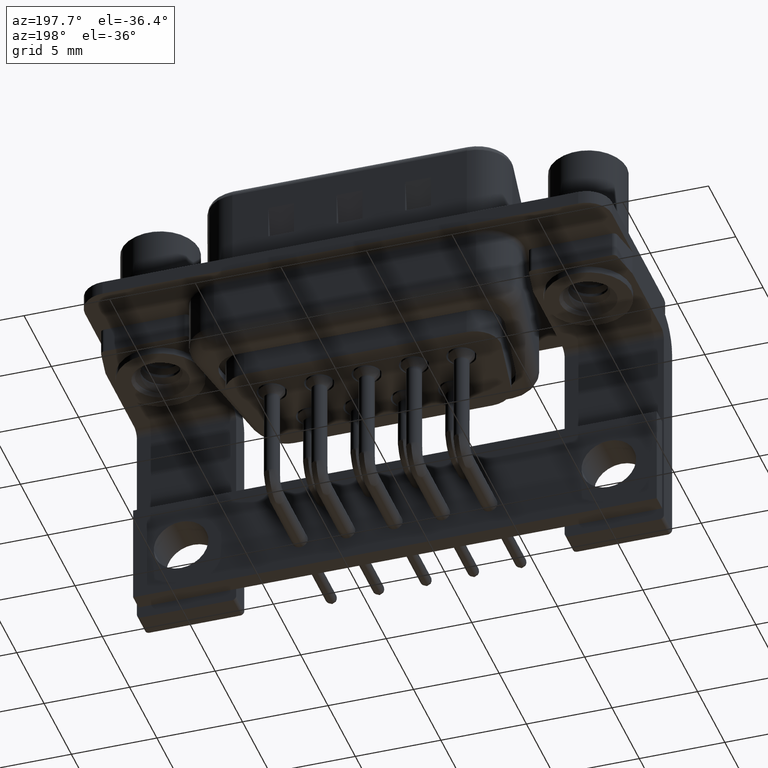
[diagram: clean part render]
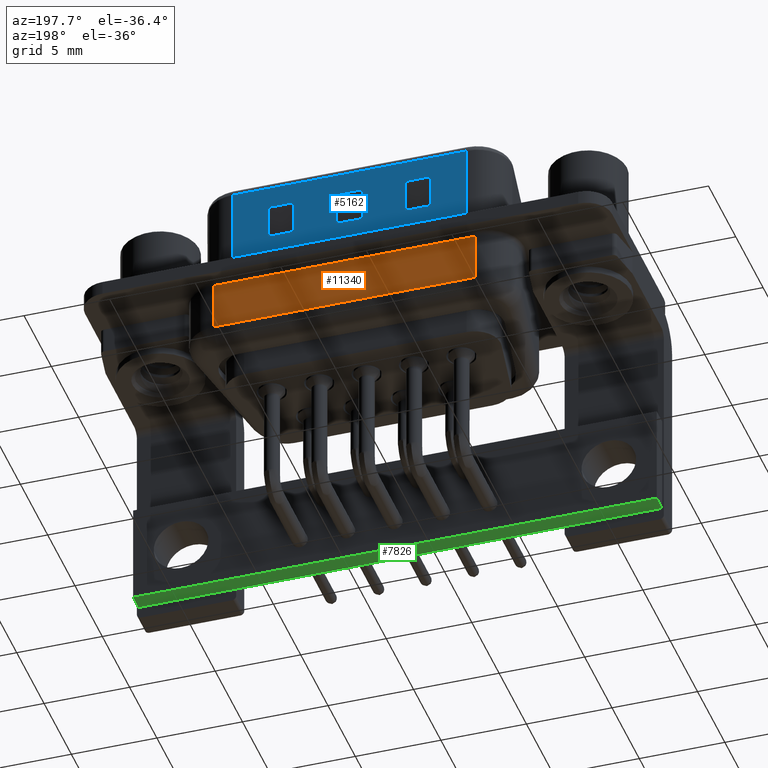
[diagram: same view with three faces highlighted in distinct colors, each labeled with its STEP entity id]
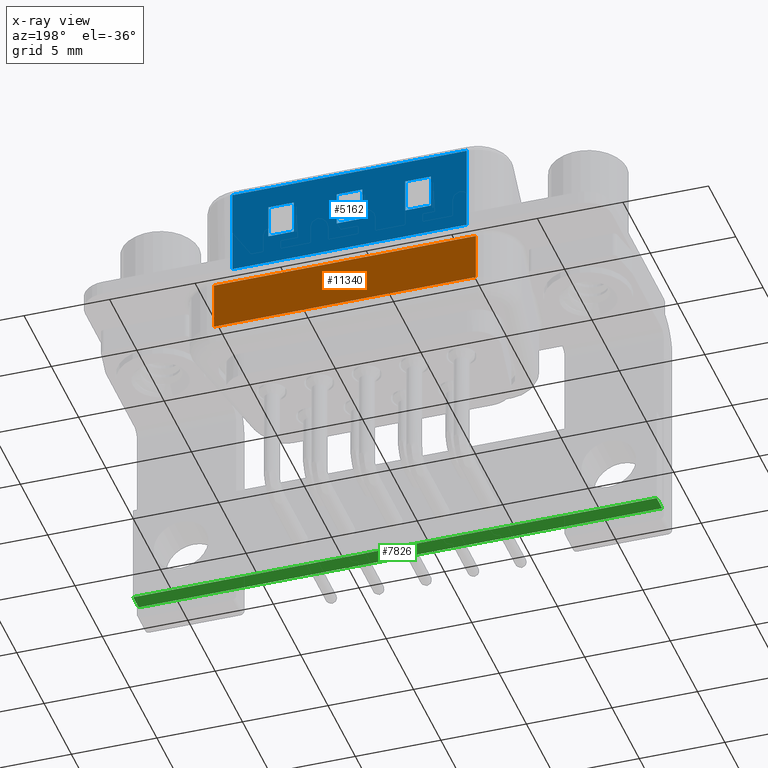
[diagram: x-ray of the same camera — body ghosted, the three highlighted faces saturated]
A machine part, auxiliary view with three faces highlighted in distinct colors.
The next image is the same camera in x-ray (body ghosted, the three faces saturated) — at least one of them is partly hidden behind the body in this view.
Their STEP definitions:

[orange] entity #11340 — the highlighted planar face has unit normal (0, -1, 0).
#416 = ORIENTED_EDGE ( 'NONE', *, *, #17095, .T. ) ;
#952 = VECTOR ( 'NONE', #10922, 1000.000000000000000 ) ;
#1479 = LINE ( 'NONE', #7462, #952 ) ;
#2146 = CARTESIAN_POINT ( 'NONE',  ( 4.850000000000006800, 5.399999999999998600, -0.6500000000000000200 ) ) ;
#2227 = ORIENTED_EDGE ( 'NONE', *, *, #13688, .T. ) ;
#2671 = VECTOR ( 'NONE', #21669, 1000.000000000000000 ) ;
#5001 = CARTESIAN_POINT ( 'NONE',  ( 20.15000000000000200, 5.399999999999995900, -4.500000000000000000 ) ) ;
#5093 = EDGE_CURVE ( 'NONE', #18664, #13876, #8900, .T. ) ;
#5285 = CARTESIAN_POINT ( 'NONE',  ( 20.15000000000000200, 5.399999999999995900, -3.499999999999999600 ) ) ;
#5634 = ORIENTED_EDGE ( 'NONE', *, *, #5093, .T. ) ;
#5920 = CARTESIAN_POINT ( 'NONE',  ( 20.15000000000000200, 5.399999999999995900, -4.500000000000000000 ) ) ;
#7462 = CARTESIAN_POINT ( 'NONE',  ( 4.850000000000006800, 5.399999999999998600, -4.500000000000000000 ) ) ;
#8352 = ORIENTED_EDGE ( 'NONE', *, *, #11010, .F. ) ;
#8428 = CARTESIAN_POINT ( 'NONE',  ( 20.15000000000000200, 5.399999999999995900, -3.499999999999999600 ) ) ;
#8455 = PLANE ( 'NONE',  #17188 ) ;
#8900 = LINE ( 'NONE', #8428, #13505 ) ;
#9809 = VERTEX_POINT ( 'NONE', #2146 ) ;
#10197 = DIRECTION ( 'NONE',  ( 0.0000000000000000000, 0.0000000000000000000, -1.000000000000000000 ) ) ;
#10922 = DIRECTION ( 'NONE',  ( -0.0000000000000000000, -0.0000000000000000000, 1.000000000000000000 ) ) ;
#11010 = EDGE_CURVE ( 'NONE', #18664, #17080, #21798, .T. ) ;
#11340 = ADVANCED_FACE ( 'NONE', ( #21516 ), #8455, .F. ) ;
#13009 = CARTESIAN_POINT ( 'NONE',  ( 20.15000000000000200, 5.399999999999995900, -0.6500000000000000200 ) ) ;
#13505 = VECTOR ( 'NONE', #22330, 1000.000000000000000 ) ;
#13688 = EDGE_CURVE ( 'NONE', #9809, #17080, #16418, .T. ) ;
#13876 = VERTEX_POINT ( 'NONE', #16981 ) ;
#16261 = DIRECTION ( 'NONE',  ( -0.0000000000000000000, -0.0000000000000000000, 1.000000000000000000 ) ) ;
#16418 = LINE ( 'NONE', #13009, #2671 ) ;
#16981 = CARTESIAN_POINT ( 'NONE',  ( 4.850000000000006800, 5.399999999999998600, -3.499999999999999600 ) ) ;
#17080 = VERTEX_POINT ( 'NONE', #17788 ) ;
#17095 = EDGE_CURVE ( 'NONE', #13876, #9809, #1479, .T. ) ;
#17188 = AXIS2_PLACEMENT_3D ( 'NONE', #5001, #20581, #10197 ) ;
#17682 = VECTOR ( 'NONE', #16261, 1000.000000000000000 ) ;
#17788 = CARTESIAN_POINT ( 'NONE',  ( 20.15000000000000200, 5.399999999999995900, -0.6500000000000000200 ) ) ;
#18664 = VERTEX_POINT ( 'NONE', #5285 ) ;
#19430 = EDGE_LOOP ( 'NONE', ( #8352, #5634, #416, #2227 ) ) ;
#20581 = DIRECTION ( 'NONE',  ( 0.0000000000000000000, -1.000000000000000000, -0.0000000000000000000 ) ) ;
#21516 = FACE_OUTER_BOUND ( 'NONE', #19430, .T. ) ;
#21669 = DIRECTION ( 'NONE',  ( 1.000000000000000000, 0.0000000000000000000, 0.0000000000000000000 ) ) ;
#21798 = LINE ( 'NONE', #5920, #17682 ) ;
#22330 = DIRECTION ( 'NONE',  ( -1.000000000000000000, -0.0000000000000000000, -0.0000000000000000000 ) ) ;

[blue] entity #5162 — the highlighted planar face has unit normal (0, -1, 0).
#273 = EDGE_CURVE ( 'NONE', #20242, #7350, #14276, .T. ) ;
#1150 = ORIENTED_EDGE ( 'NONE', *, *, #6759, .F. ) ;
#1297 = CARTESIAN_POINT ( 'NONE',  ( 15.75000000000000700, 4.549999999999998900, 2.704948974278317000 ) ) ;
#1377 = LINE ( 'NONE', #1297, #11092 ) ;
#1408 = ORIENTED_EDGE ( 'NONE', *, *, #12482, .F. ) ;
#1553 = LINE ( 'NONE', #8089, #11809 ) ;
#1670 = VECTOR ( 'NONE', #21272, 1000.000000000000000 ) ;
#2082 = CARTESIAN_POINT ( 'NONE',  ( 15.75000000000000700, 4.549999999999998900, 4.704948974278316600 ) ) ;
#2485 = DIRECTION ( 'NONE',  ( -0.0000000000000000000, -0.0000000000000000000, 1.000000000000000000 ) ) ;
#2594 = DIRECTION ( 'NONE',  ( 0.0000000000000000000, 0.0000000000000000000, -1.000000000000000000 ) ) ;
#2715 = FACE_BOUND ( 'NONE', #16848, .T. ) ;
#2780 = EDGE_LOOP ( 'NONE', ( #4655, #4091, #16386, #21004 ) ) ;
#3380 = CARTESIAN_POINT ( 'NONE',  ( 15.75000000000000700, 4.549999999999998900, 2.704948974278317000 ) ) ;
#3559 = ORIENTED_EDGE ( 'NONE', *, *, #9451, .T. ) ;
#3616 = CARTESIAN_POINT ( 'NONE',  ( 13.25000000000000900, 4.549999999999998900, 4.704948974278316600 ) ) ;
#3790 = LINE ( 'NONE', #11424, #7840 ) ;
#3933 = VECTOR ( 'NONE', #21943, 1000.000000000000000 ) ;
#4091 = ORIENTED_EDGE ( 'NONE', *, *, #6440, .F. ) ;
#4217 = DIRECTION ( 'NONE',  ( 1.000000000000000000, 0.0000000000000000000, 0.0000000000000000000 ) ) ;
#4338 = CARTESIAN_POINT ( 'NONE',  ( 19.34999999999999800, 4.550000000000001600, 6.520000000000000500 ) ) ;
#4404 = EDGE_CURVE ( 'NONE', #14673, #19826, #7038, .T. ) ;
#4519 = DIRECTION ( 'NONE',  ( 1.000000000000000000, 0.0000000000000000000, 0.0000000000000000000 ) ) ;
#4570 = ORIENTED_EDGE ( 'NONE', *, *, #273, .F. ) ;
#4655 = ORIENTED_EDGE ( 'NONE', *, *, #11922, .F. ) ;
#5083 = CARTESIAN_POINT ( 'NONE',  ( 9.250000000000008900, 4.549999999999998900, 4.704948974278316600 ) ) ;
#5162 = ADVANCED_FACE ( 'NONE', ( #2715, #11334, #7284, #15920 ), #17346, .F. ) ;
#5210 = DIRECTION ( 'NONE',  ( 0.0000000000000000000, -1.000000000000000000, 0.0000000000000000000 ) ) ;
#5333 = CARTESIAN_POINT ( 'NONE',  ( 11.75000000000000700, 4.549999999999998900, 2.704948974278317000 ) ) ;
#5340 = VECTOR ( 'NONE', #8789, 1000.000000000000000 ) ;
#5914 = VERTEX_POINT ( 'NONE', #2082 ) ;
#6111 = EDGE_CURVE ( 'NONE', #11338, #15356, #10259, .T. ) ;
#6272 = ORIENTED_EDGE ( 'NONE', *, *, #12536, .F. ) ;
#6440 = EDGE_CURVE ( 'NONE', #21336, #16873, #13486, .T. ) ;
#6759 = EDGE_CURVE ( 'NONE', #14450, #11338, #20803, .T. ) ;
#6988 = DIRECTION ( 'NONE',  ( 0.0000000000000000000, -0.0000000000000000000, -1.000000000000000000 ) ) ;
#6997 = EDGE_CURVE ( 'NONE', #8365, #21451, #11843, .T. ) ;
#7038 = LINE ( 'NONE', #4338, #15686 ) ;
#7207 = CARTESIAN_POINT ( 'NONE',  ( 7.750000000000007100, 4.549999999999998900, 2.704948974278317000 ) ) ;
#7252 = VECTOR ( 'NONE', #2594, 1000.000000000000000 ) ;
#7284 = FACE_BOUND ( 'NONE', #20623, .T. ) ;
#7349 = EDGE_CURVE ( 'NONE', #10848, #19472, #14537, .T. ) ;
#7350 = VERTEX_POINT ( 'NONE', #17405 ) ;
#7535 = VECTOR ( 'NONE', #13818, 1000.000000000000000 ) ;
#7548 = EDGE_CURVE ( 'NONE', #16839, #5914, #21043, .T. ) ;
#7604 = CARTESIAN_POINT ( 'NONE',  ( 5.650000000000014600, 4.549999999999998900, 6.520000000000000500 ) ) ;
#7697 = ORIENTED_EDGE ( 'NONE', *, *, #7349, .F. ) ;
#7703 = CARTESIAN_POINT ( 'NONE',  ( 17.25000000000000700, 4.549999999999998900, 4.704948974278316600 ) ) ;
#7816 = VECTOR ( 'NONE', #20316, 1000.000000000000000 ) ;
#7840 = VECTOR ( 'NONE', #16692, 1000.000000000000000 ) ;
#8089 = CARTESIAN_POINT ( 'NONE',  ( 5.650000000000014600, 4.549999999999998900, 6.020000000000001400 ) ) ;
#8303 = DIRECTION ( 'NONE',  ( -0.0000000000000000000, -0.0000000000000000000, -1.000000000000000000 ) ) ;
#8365 = VERTEX_POINT ( 'NONE', #5083 ) ;
#8789 = DIRECTION ( 'NONE',  ( -0.0000000000000000000, -0.0000000000000000000, 1.000000000000000000 ) ) ;
#9451 = EDGE_CURVE ( 'NONE', #20242, #14673, #1553, .T. ) ;
#9453 = DIRECTION ( 'NONE',  ( -1.000000000000000000, -0.0000000000000000000, -0.0000000000000000000 ) ) ;
#9805 = CARTESIAN_POINT ( 'NONE',  ( 5.650000000000014600, 4.549999999999998900, 0.8999999999999998000 ) ) ;
#9878 = CARTESIAN_POINT ( 'NONE',  ( 13.25000000000000900, 4.549999999999998900, 4.704948974278316600 ) ) ;
#9937 = CARTESIAN_POINT ( 'NONE',  ( 11.75000000000000700, 4.549999999999998900, 4.704948974278316600 ) ) ;
#10259 = LINE ( 'NONE', #19821, #19457 ) ;
#10848 = VERTEX_POINT ( 'NONE', #7207 ) ;
#11042 = CARTESIAN_POINT ( 'NONE',  ( 15.75000000000000700, 4.549999999999998900, 4.704948974278316600 ) ) ;
#11092 = VECTOR ( 'NONE', #20241, 1000.000000000000000 ) ;
#11294 = CARTESIAN_POINT ( 'NONE',  ( 19.34999999999999800, 4.550000000000001600, 0.8999999999999998000 ) ) ;
#11334 = FACE_BOUND ( 'NONE', #2780, .T. ) ;
#11338 = VERTEX_POINT ( 'NONE', #22280 ) ;
#11424 = CARTESIAN_POINT ( 'NONE',  ( 11.75000000000000700, 4.549999999999998900, 4.704948974278316600 ) ) ;
#11645 = EDGE_CURVE ( 'NONE', #16185, #14450, #21148, .T. ) ;
#11679 = CARTESIAN_POINT ( 'NONE',  ( 9.250000000000008900, 4.549999999999998900, 2.704948974278317000 ) ) ;
#11809 = VECTOR ( 'NONE', #16699, 1000.000000000000000 ) ;
#11843 = LINE ( 'NONE', #19787, #7252 ) ;
#11922 = EDGE_CURVE ( 'NONE', #16873, #16839, #1377, .T. ) ;
#12144 = ORIENTED_EDGE ( 'NONE', *, *, #6111, .F. ) ;
#12406 = LINE ( 'NONE', #15086, #7816 ) ;
#12482 = EDGE_CURVE ( 'NONE', #19472, #8365, #18087, .T. ) ;
#12536 = EDGE_CURVE ( 'NONE', #21451, #10848, #12406, .T. ) ;
#12706 = ORIENTED_EDGE ( 'NONE', *, *, #6997, .F. ) ;
#13078 = VECTOR ( 'NONE', #4217, 1000.000000000000000 ) ;
#13486 = LINE ( 'NONE', #7703, #22195 ) ;
#13494 = VECTOR ( 'NONE', #4519, 1000.000000000000000 ) ;
#13818 = DIRECTION ( 'NONE',  ( 0.0000000000000000000, 0.0000000000000000000, -1.000000000000000000 ) ) ;
#13937 = CARTESIAN_POINT ( 'NONE',  ( 7.750000000000007100, 4.549999999999998900, 4.704948974278316600 ) ) ;
#13994 = CARTESIAN_POINT ( 'NONE',  ( 5.650000000000014600, 4.549999999999998900, 6.020000000000001400 ) ) ;
#14276 = LINE ( 'NONE', #7604, #18317 ) ;
#14450 = VERTEX_POINT ( 'NONE', #9878 ) ;
#14537 = LINE ( 'NONE', #13937, #5340 ) ;
#14550 = CARTESIAN_POINT ( 'NONE',  ( 17.25000000000000700, 4.549999999999998900, 4.704948974278316600 ) ) ;
#14673 = VERTEX_POINT ( 'NONE', #20932 ) ;
#14781 = DIRECTION ( 'NONE',  ( -0.0000000000000000000, -0.0000000000000000000, -1.000000000000000000 ) ) ;
#15086 = CARTESIAN_POINT ( 'NONE',  ( 7.750000000000007100, 4.549999999999998900, 2.704948974278317000 ) ) ;
#15187 = EDGE_LOOP ( 'NONE', ( #4570, #3559, #18635, #21153 ) ) ;
#15356 = VERTEX_POINT ( 'NONE', #5333 ) ;
#15602 = CARTESIAN_POINT ( 'NONE',  ( 5.650000000000014600, 4.549999999999998900, 6.520000000000000500 ) ) ;
#15686 = VECTOR ( 'NONE', #8303, 1000.000000000000000 ) ;
#15865 = VECTOR ( 'NONE', #2485, 1000.000000000000000 ) ;
#15920 = FACE_OUTER_BOUND ( 'NONE', #15187, .T. ) ;
#16131 = EDGE_CURVE ( 'NONE', #19826, #7350, #16622, .T. ) ;
#16185 = VERTEX_POINT ( 'NONE', #9937 ) ;
#16200 = CARTESIAN_POINT ( 'NONE',  ( 15.75000000000000700, 4.549999999999998900, 4.704948974278316600 ) ) ;
#16281 = ORIENTED_EDGE ( 'NONE', *, *, #11645, .F. ) ;
#16312 = DIRECTION ( 'NONE',  ( 0.0000000000000000000, 0.0000000000000000000, -1.000000000000000000 ) ) ;
#16386 = ORIENTED_EDGE ( 'NONE', *, *, #17135, .F. ) ;
#16622 = LINE ( 'NONE', #9805, #3933 ) ;
#16692 = DIRECTION ( 'NONE',  ( -0.0000000000000000000, -0.0000000000000000000, 1.000000000000000000 ) ) ;
#16699 = DIRECTION ( 'NONE',  ( 1.000000000000000000, -0.0000000000000000000, -0.0000000000000000000 ) ) ;
#16839 = VERTEX_POINT ( 'NONE', #3380 ) ;
#16848 = EDGE_LOOP ( 'NONE', ( #6272, #12706, #1408, #7697 ) ) ;
#16873 = VERTEX_POINT ( 'NONE', #20785 ) ;
#17135 = EDGE_CURVE ( 'NONE', #5914, #21336, #17669, .T. ) ;
#17346 = PLANE ( 'NONE',  #20658 ) ;
#17405 = CARTESIAN_POINT ( 'NONE',  ( 5.650000000000014600, 4.549999999999998900, 0.8999999999999998000 ) ) ;
#17669 = LINE ( 'NONE', #16200, #13078 ) ;
#17842 = CARTESIAN_POINT ( 'NONE',  ( 7.750000000000007100, 4.549999999999998900, 4.704948974278316600 ) ) ;
#17960 = ORIENTED_EDGE ( 'NONE', *, *, #20620, .F. ) ;
#18087 = LINE ( 'NONE', #18329, #13494 ) ;
#18317 = VECTOR ( 'NONE', #14781, 1000.000000000000000 ) ;
#18329 = CARTESIAN_POINT ( 'NONE',  ( 7.750000000000007100, 4.549999999999998900, 4.704948974278316600 ) ) ;
#18635 = ORIENTED_EDGE ( 'NONE', *, *, #4404, .T. ) ;
#19457 = VECTOR ( 'NONE', #9453, 1000.000000000000000 ) ;
#19472 = VERTEX_POINT ( 'NONE', #17842 ) ;
#19499 = CARTESIAN_POINT ( 'NONE',  ( 11.75000000000000700, 4.549999999999998900, 4.704948974278316600 ) ) ;
#19787 = CARTESIAN_POINT ( 'NONE',  ( 9.250000000000008900, 4.549999999999998900, 4.704948974278316600 ) ) ;
#19821 = CARTESIAN_POINT ( 'NONE',  ( 11.75000000000000700, 4.549999999999998900, 2.704948974278317000 ) ) ;
#19826 = VERTEX_POINT ( 'NONE', #11294 ) ;
#20241 = DIRECTION ( 'NONE',  ( -1.000000000000000000, -0.0000000000000000000, -0.0000000000000000000 ) ) ;
#20242 = VERTEX_POINT ( 'NONE', #13994 ) ;
#20316 = DIRECTION ( 'NONE',  ( -1.000000000000000000, -0.0000000000000000000, -0.0000000000000000000 ) ) ;
#20620 = EDGE_CURVE ( 'NONE', #15356, #16185, #3790, .T. ) ;
#20623 = EDGE_LOOP ( 'NONE', ( #12144, #1150, #16281, #17960 ) ) ;
#20658 = AXIS2_PLACEMENT_3D ( 'NONE', #15602, #5210, #6988 ) ;
#20785 = CARTESIAN_POINT ( 'NONE',  ( 17.25000000000000700, 4.549999999999998900, 2.704948974278317000 ) ) ;
#20803 = LINE ( 'NONE', #3616, #7535 ) ;
#20932 = CARTESIAN_POINT ( 'NONE',  ( 19.34999999999999800, 4.550000000000001600, 6.020000000000001400 ) ) ;
#21004 = ORIENTED_EDGE ( 'NONE', *, *, #7548, .F. ) ;
#21043 = LINE ( 'NONE', #11042, #15865 ) ;
#21148 = LINE ( 'NONE', #19499, #1670 ) ;
#21153 = ORIENTED_EDGE ( 'NONE', *, *, #16131, .T. ) ;
#21272 = DIRECTION ( 'NONE',  ( 1.000000000000000000, 0.0000000000000000000, 0.0000000000000000000 ) ) ;
#21336 = VERTEX_POINT ( 'NONE', #14550 ) ;
#21451 = VERTEX_POINT ( 'NONE', #11679 ) ;
#21943 = DIRECTION ( 'NONE',  ( -1.000000000000000000, 0.0000000000000000000, 0.0000000000000000000 ) ) ;
#22195 = VECTOR ( 'NONE', #16312, 1000.000000000000000 ) ;
#22280 = CARTESIAN_POINT ( 'NONE',  ( 13.25000000000000900, 4.549999999999998900, 2.704948974278317000 ) ) ;

[green] entity #7826 — the highlighted planar face has unit normal (0, 0, 1).
#33 = VECTOR ( 'NONE', #13229, 1000.000000000000000 ) ;
#530 = VERTEX_POINT ( 'NONE', #8430 ) ;
#829 = ORIENTED_EDGE ( 'NONE', *, *, #6252, .F. ) ;
#1121 = VERTEX_POINT ( 'NONE', #5967 ) ;
#1128 = CARTESIAN_POINT ( 'NONE',  ( 27.80000000000000400, -3.750000000000000000, -14.07000000000000200 ) ) ;
#2906 = CARTESIAN_POINT ( 'NONE',  ( 27.80000000000000400, -3.750000000000000000, -14.07000000000000200 ) ) ;
#3124 = EDGE_CURVE ( 'NONE', #530, #18277, #21359, .T. ) ;
#5967 = CARTESIAN_POINT ( 'NONE',  ( -2.799999999999997200, -3.750000000000000000, -14.06999999999999900 ) ) ;
#6252 = EDGE_CURVE ( 'NONE', #21959, #1121, #8079, .T. ) ;
#7064 = LINE ( 'NONE', #1128, #19791 ) ;
#7147 = DIRECTION ( 'NONE',  ( 1.133806193448893400E-016, -0.0000000000000000000, 1.000000000000000000 ) ) ;
#7178 = VECTOR ( 'NONE', #8040, 1000.000000000000000 ) ;
#7792 = CARTESIAN_POINT ( 'NONE',  ( 27.80000000000000400, -3.750000000000000000, -14.07000000000000200 ) ) ;
#7826 = ADVANCED_FACE ( 'NONE', ( #20197 ), #14016, .F. ) ;
#8040 = DIRECTION ( 'NONE',  ( -0.0000000000000000000, -1.000000000000000000, -0.0000000000000000000 ) ) ;
#8079 = LINE ( 'NONE', #2906, #33 ) ;
#8430 = CARTESIAN_POINT ( 'NONE',  ( 27.80000000000000400, -4.750000000000000000, -14.07000000000000200 ) ) ;
#9586 = ORIENTED_EDGE ( 'NONE', *, *, #3124, .T. ) ;
#11446 = DIRECTION ( 'NONE',  ( -0.0000000000000000000, -1.000000000000000000, -0.0000000000000000000 ) ) ;
#11776 = LINE ( 'NONE', #14940, #7178 ) ;
#12133 = VECTOR ( 'NONE', #16104, 1000.000000000000000 ) ;
#12972 = EDGE_LOOP ( 'NONE', ( #9586, #14627, #829, #21838 ) ) ;
#13229 = DIRECTION ( 'NONE',  ( -1.000000000000000000, 0.0000000000000000000, 1.133806193448893400E-016 ) ) ;
#14016 = PLANE ( 'NONE',  #15153 ) ;
#14627 = ORIENTED_EDGE ( 'NONE', *, *, #15221, .F. ) ;
#14902 = CARTESIAN_POINT ( 'NONE',  ( 27.80000000000000400, -4.750000000000000000, -14.07000000000000200 ) ) ;
#14940 = CARTESIAN_POINT ( 'NONE',  ( -2.799999999999997200, -3.750000000000000000, -14.06999999999999900 ) ) ;
#15153 = AXIS2_PLACEMENT_3D ( 'NONE', #17484, #7147, #19233 ) ;
#15221 = EDGE_CURVE ( 'NONE', #1121, #18277, #11776, .T. ) ;
#16104 = DIRECTION ( 'NONE',  ( -1.000000000000000000, 0.0000000000000000000, 1.133806193448893400E-016 ) ) ;
#16236 = CARTESIAN_POINT ( 'NONE',  ( -2.799999999999997200, -4.750000000000000000, -14.06999999999999900 ) ) ;
#17484 = CARTESIAN_POINT ( 'NONE',  ( 27.80000000000000400, -3.750000000000000000, -14.07000000000000200 ) ) ;
#18277 = VERTEX_POINT ( 'NONE', #16236 ) ;
#19233 = DIRECTION ( 'NONE',  ( 1.000000000000000000, 0.0000000000000000000, -1.133806193448893400E-016 ) ) ;
#19791 = VECTOR ( 'NONE', #11446, 1000.000000000000000 ) ;
#19910 = EDGE_CURVE ( 'NONE', #21959, #530, #7064, .T. ) ;
#20197 = FACE_OUTER_BOUND ( 'NONE', #12972, .T. ) ;
#21359 = LINE ( 'NONE', #14902, #12133 ) ;
#21838 = ORIENTED_EDGE ( 'NONE', *, *, #19910, .T. ) ;
#21959 = VERTEX_POINT ( 'NONE', #7792 ) ;